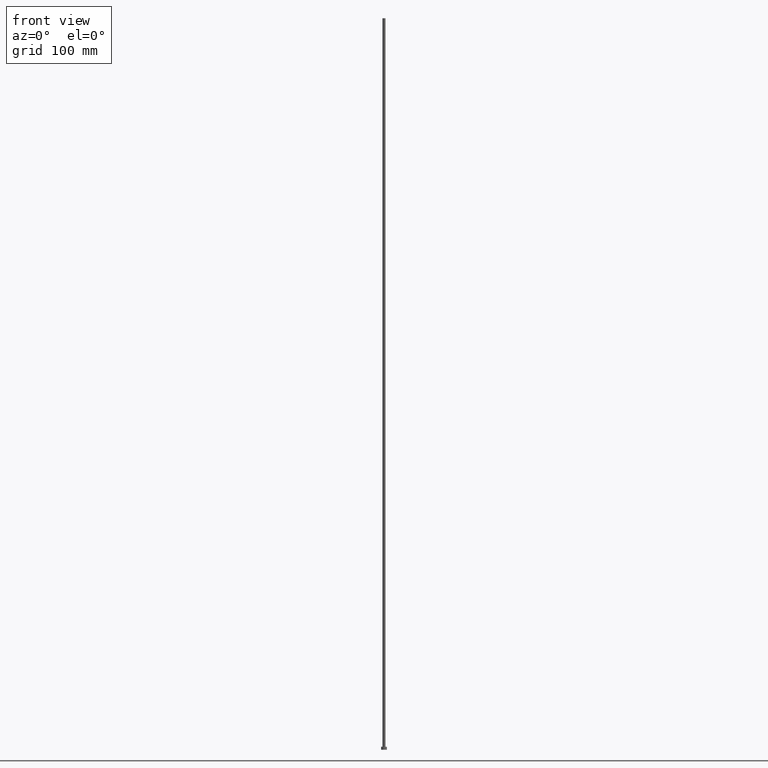
[diagram: clean part render]
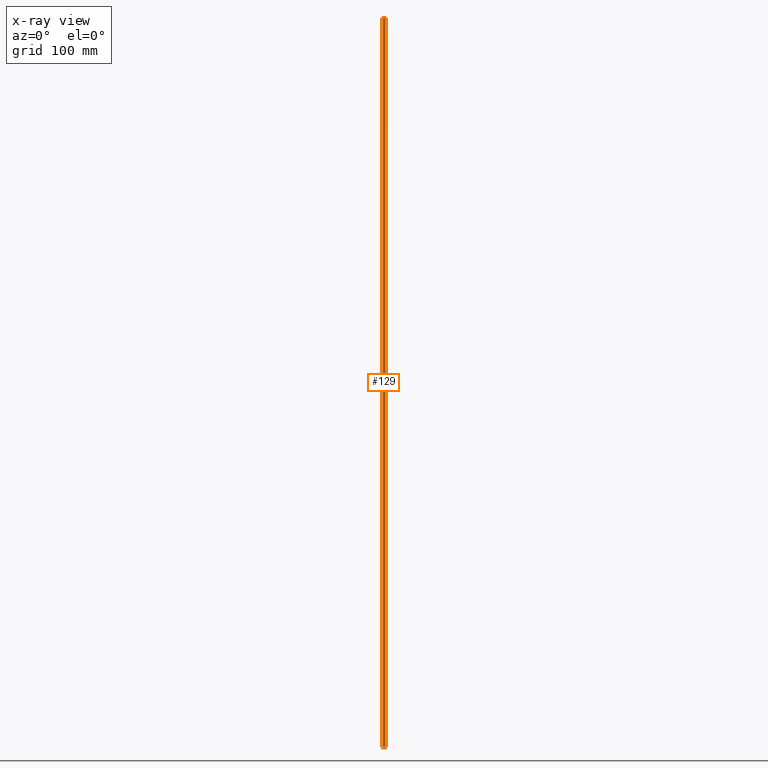
[diagram: x-ray — body ghosted, one internal face saturated and labeled with its STEP entity id]
A machine part, front view, then the same camera in x-ray: the body is ghosted and one INTERNAL B-rep face — a face not visible from any outside direction — is saturated and labeled: STEP entity #129.
In plain terms, the highlighted cylindrical surface (edge-blend (fillet) strip) has radius 2.1 mm, axis along (-0, -0, -1).
Its self-contained STEP definition (entity closure, byte-faithful):
#3 = VECTOR ( 'NONE', #163, 1000.000000000000000 ) ;
#8 = CARTESIAN_POINT ( 'NONE',  ( 0.000000000000000000, 0.000000000000000000, 4.000000000000000000 ) ) ;
#12 = VERTEX_POINT ( 'NONE', #121 ) ;
#24 = CARTESIAN_POINT ( 'NONE',  ( 2.100000000000000089, 2.571758278209441957E-16, 1000.000000000000000 ) ) ;
#27 = ORIENTED_EDGE ( 'NONE', *, *, #30, .F. ) ;
#28 = DIRECTION ( 'NONE',  ( -1.000000000000000000, 0.000000000000000000, 0.000000000000000000 ) ) ;
#30 = EDGE_CURVE ( 'NONE', #119, #12, #130, .T. ) ;
#33 = DIRECTION ( 'NONE',  ( 1.000000000000000000, 0.000000000000000000, 0.000000000000000000 ) ) ;
#34 = FACE_OUTER_BOUND ( 'NONE', #190, .T. ) ;
#39 = CYLINDRICAL_SURFACE ( 'NONE', #148, 2.100000000000000089 ) ;
#41 = EDGE_CURVE ( 'NONE', #51, #124, #166, .T. ) ;
#43 = VECTOR ( 'NONE', #144, 1000.000000000000000 ) ;
#51 = VERTEX_POINT ( 'NONE', #78 ) ;
#76 = DIRECTION ( 'NONE',  ( 0.000000000000000000, 0.000000000000000000, 1.000000000000000000 ) ) ;
#78 = CARTESIAN_POINT ( 'NONE',  ( 2.100000000000000089, 2.571758278209441957E-16, 4.000000000000000000 ) ) ;
#84 = EDGE_CURVE ( 'NONE', #12, #124, #191, .T. ) ;
#92 = EDGE_CURVE ( 'NONE', #119, #51, #184, .T. ) ;
#99 = DIRECTION ( 'NONE',  ( -0.000000000000000000, -0.000000000000000000, -1.000000000000000000 ) ) ;
#100 = CARTESIAN_POINT ( 'NONE',  ( -2.100000000000000089, 0.000000000000000000, 1000.000000000000000 ) ) ;
#101 = ORIENTED_EDGE ( 'NONE', *, *, #92, .T. ) ;
#109 = ORIENTED_EDGE ( 'NONE', *, *, #41, .T. ) ;
#119 = VERTEX_POINT ( 'NONE', #226 ) ;
#121 = CARTESIAN_POINT ( 'NONE',  ( -2.100000000000000089, 0.000000000000000000, 1000.000000000000000 ) ) ;
#122 = ORIENTED_EDGE ( 'NONE', *, *, #84, .F. ) ;
#124 = VERTEX_POINT ( 'NONE', #204 ) ;
#126 = CARTESIAN_POINT ( 'NONE',  ( 0.000000000000000000, 0.000000000000000000, 1000.000000000000000 ) ) ;
#129 = ADVANCED_FACE ( 'NONE', ( #34 ), #39, .T. ) ;
#130 = CIRCLE ( 'NONE', #146, 2.100000000000000089 ) ;
#144 = DIRECTION ( 'NONE',  ( -0.000000000000000000, -0.000000000000000000, -1.000000000000000000 ) ) ;
#146 = AXIS2_PLACEMENT_3D ( 'NONE', #189, #221, #158 ) ;
#148 = AXIS2_PLACEMENT_3D ( 'NONE', #126, #99, #28 ) ;
#158 = DIRECTION ( 'NONE',  ( 1.000000000000000000, 0.000000000000000000, 0.000000000000000000 ) ) ;
#163 = DIRECTION ( 'NONE',  ( -0.000000000000000000, -0.000000000000000000, -1.000000000000000000 ) ) ;
#166 = CIRCLE ( 'NONE', #225, 2.100000000000000089 ) ;
#184 = LINE ( 'NONE', #24, #43 ) ;
#189 = CARTESIAN_POINT ( 'NONE',  ( 0.000000000000000000, 0.000000000000000000, 1000.000000000000000 ) ) ;
#190 = EDGE_LOOP ( 'NONE', ( #27, #101, #109, #122 ) ) ;
#191 = LINE ( 'NONE', #100, #3 ) ;
#204 = CARTESIAN_POINT ( 'NONE',  ( -2.100000000000000089, 0.000000000000000000, 4.000000000000000000 ) ) ;
#221 = DIRECTION ( 'NONE',  ( 0.000000000000000000, 0.000000000000000000, 1.000000000000000000 ) ) ;
#225 = AXIS2_PLACEMENT_3D ( 'NONE', #8, #76, #33 ) ;
#226 = CARTESIAN_POINT ( 'NONE',  ( 2.100000000000000089, 2.571758278209441957E-16, 1000.000000000000000 ) ) ;